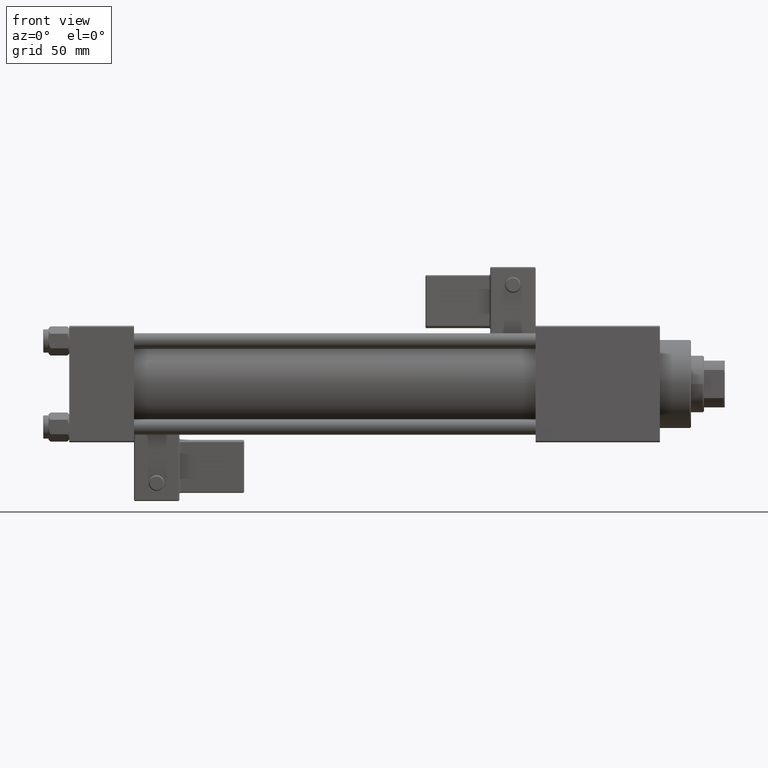
[diagram: clean part render]
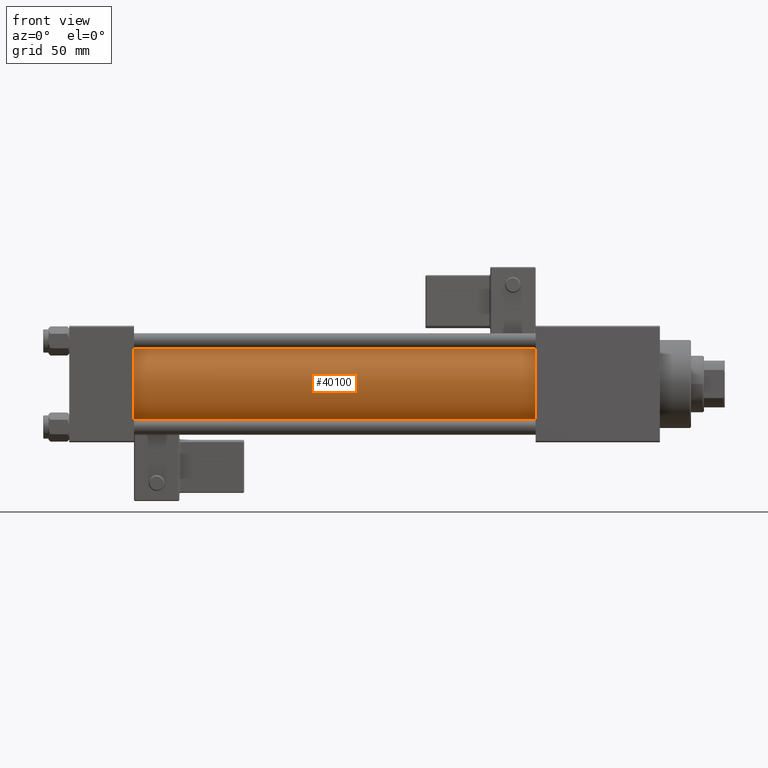
[diagram: same view with one face highlighted and labeled with its STEP entity id]
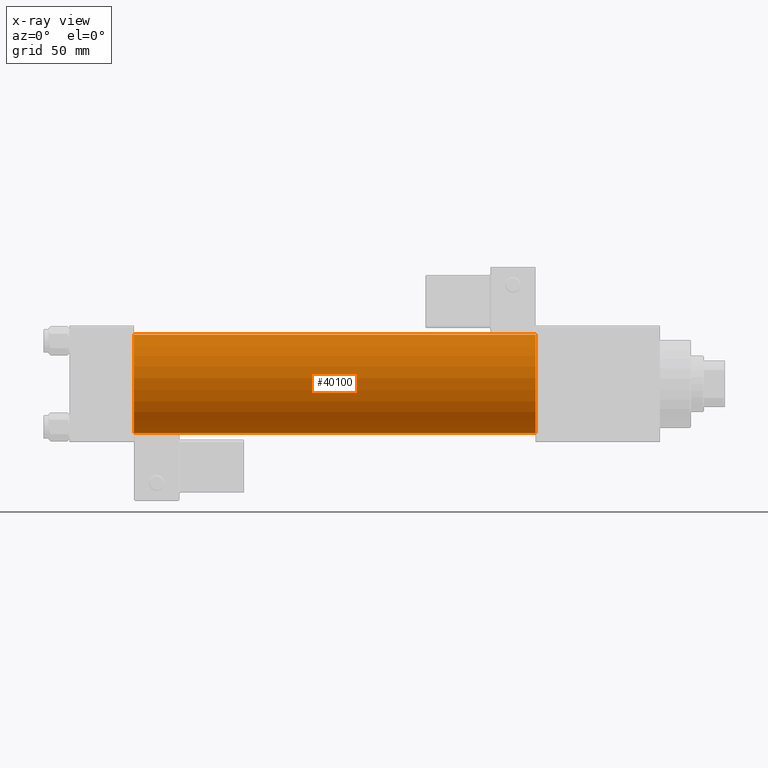
[diagram: x-ray of the same camera — body ghosted, the highlighted face saturated]
A machine part, front view. The second image highlights one B-rep face of the part: STEP entity #40100.
The next image is the same camera in x-ray: the body ghosted, the highlighted face saturated — about 0% of this face is hidden behind the body in this view.
In plain terms, the highlighted cylindrical surface (partial cylindrical patch) has radius 19 mm, axis along (-1, -0, -0).
Its self-contained STEP definition (entity closure, byte-faithful):
#737 = DIRECTION ( 'NONE',  ( -1.000000000000000000, -0.000000000000000000, -0.000000000000000000 ) ) ;
#3476 = AXIS2_PLACEMENT_3D ( 'NONE', #17042, #29549, #25477 ) ;
#4815 = CARTESIAN_POINT ( 'NONE',  ( 180.0000000000000000, -2.752562955852396712E-16, -19.00000000000000000 ) ) ;
#5190 = CIRCLE ( 'NONE', #3476, 19.00000000000000000 ) ;
#5248 = VERTEX_POINT ( 'NONE', #42349 ) ;
#7069 = DIRECTION ( 'NONE',  ( 1.000000000000000000, -0.000000000000000000, 0.000000000000000000 ) ) ;
#8934 = EDGE_CURVE ( 'NONE', #53415, #25088, #5190, .T. ) ;
#11441 = DIRECTION ( 'NONE',  ( 0.000000000000000000, 0.000000000000000000, 1.000000000000000000 ) ) ;
#13019 = LINE ( 'NONE', #4815, #22815 ) ;
#13463 = AXIS2_PLACEMENT_3D ( 'NONE', #20149, #15257, #11441 ) ;
#13487 = EDGE_CURVE ( 'NONE', #53415, #38282, #20624, .T. ) ;
#15257 = DIRECTION ( 'NONE',  ( -1.000000000000000000, -0.000000000000000000, -0.000000000000000000 ) ) ;
#16268 = DIRECTION ( 'NONE',  ( -1.000000000000000000, -0.000000000000000000, -0.000000000000000000 ) ) ;
#17042 = CARTESIAN_POINT ( 'NONE',  ( 180.0000000000000000, -2.602085213965210642E-15, 0.000000000000000000 ) ) ;
#19858 = CARTESIAN_POINT ( 'NONE',  ( 24.99999999999999289, -2.602085213965210642E-15, 19.00000000000000000 ) ) ;
#20129 = CARTESIAN_POINT ( 'NONE',  ( 24.99999999999999289, -2.602085213965210642E-15, 0.000000000000000000 ) ) ;
#20149 = CARTESIAN_POINT ( 'NONE',  ( 180.0000000000000000, -2.602085213965210642E-15, 0.000000000000000000 ) ) ;
#20624 = LINE ( 'NONE', #40734, #52214 ) ;
#22815 = VECTOR ( 'NONE', #737, 1000.000000000000000 ) ;
#25088 = VERTEX_POINT ( 'NONE', #30195 ) ;
#25477 = DIRECTION ( 'NONE',  ( 0.000000000000000000, 0.000000000000000000, -1.000000000000000000 ) ) ;
#26091 = EDGE_CURVE ( 'NONE', #38282, #5248, #39925, .T. ) ;
#28567 = CYLINDRICAL_SURFACE ( 'NONE', #13463, 19.00000000000000000 ) ;
#29269 = ORIENTED_EDGE ( 'NONE', *, *, #8934, .F. ) ;
#29549 = DIRECTION ( 'NONE',  ( 1.000000000000000000, 0.000000000000000000, 0.000000000000000000 ) ) ;
#30195 = CARTESIAN_POINT ( 'NONE',  ( 180.0000000000000000, -2.752562955852396712E-16, -19.00000000000000000 ) ) ;
#31537 = DIRECTION ( 'NONE',  ( 0.000000000000000000, 0.000000000000000000, 1.000000000000000000 ) ) ;
#31899 = EDGE_CURVE ( 'NONE', #25088, #5248, #13019, .T. ) ;
#32538 = ORIENTED_EDGE ( 'NONE', *, *, #26091, .T. ) ;
#32739 = ORIENTED_EDGE ( 'NONE', *, *, #31899, .F. ) ;
#32930 = ORIENTED_EDGE ( 'NONE', *, *, #13487, .T. ) ;
#38282 = VERTEX_POINT ( 'NONE', #19858 ) ;
#38829 = EDGE_LOOP ( 'NONE', ( #32739, #29269, #32930, #32538 ) ) ;
#39925 = CIRCLE ( 'NONE', #41669, 19.00000000000000000 ) ;
#40100 = ADVANCED_FACE ( 'NONE', ( #52734 ), #28567, .T. ) ;
#40734 = CARTESIAN_POINT ( 'NONE',  ( 180.0000000000000000, -2.602085213965210642E-15, 19.00000000000000000 ) ) ;
#41669 = AXIS2_PLACEMENT_3D ( 'NONE', #20129, #7069, #31537 ) ;
#42349 = CARTESIAN_POINT ( 'NONE',  ( 24.99999999999999289, -2.752562955852396712E-16, -19.00000000000000000 ) ) ;
#44637 = CARTESIAN_POINT ( 'NONE',  ( 180.0000000000000000, -2.602085213965210642E-15, 19.00000000000000000 ) ) ;
#52214 = VECTOR ( 'NONE', #16268, 1000.000000000000000 ) ;
#52734 = FACE_OUTER_BOUND ( 'NONE', #38829, .T. ) ;
#53415 = VERTEX_POINT ( 'NONE', #44637 ) ;